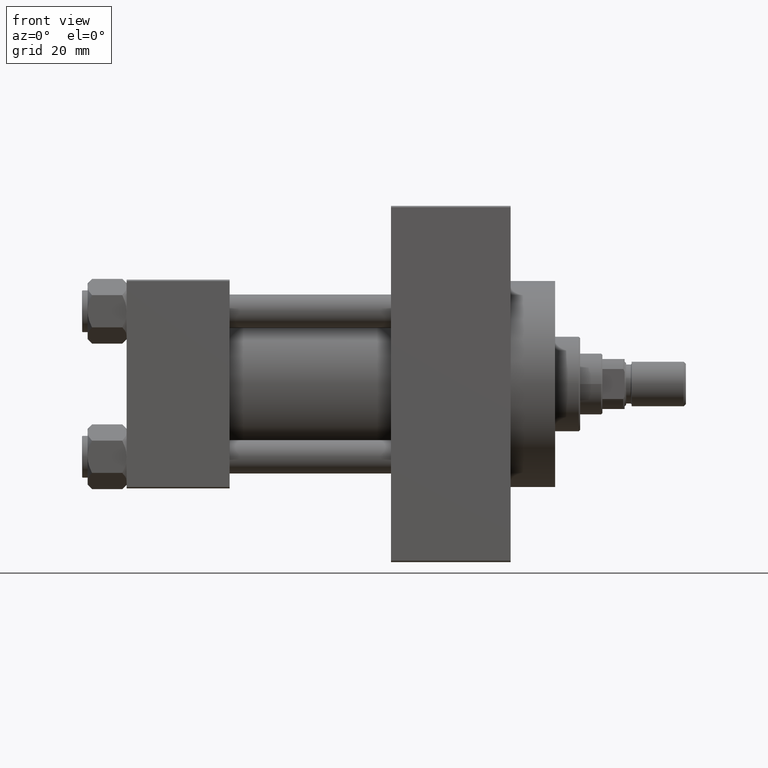
[diagram: clean part render]
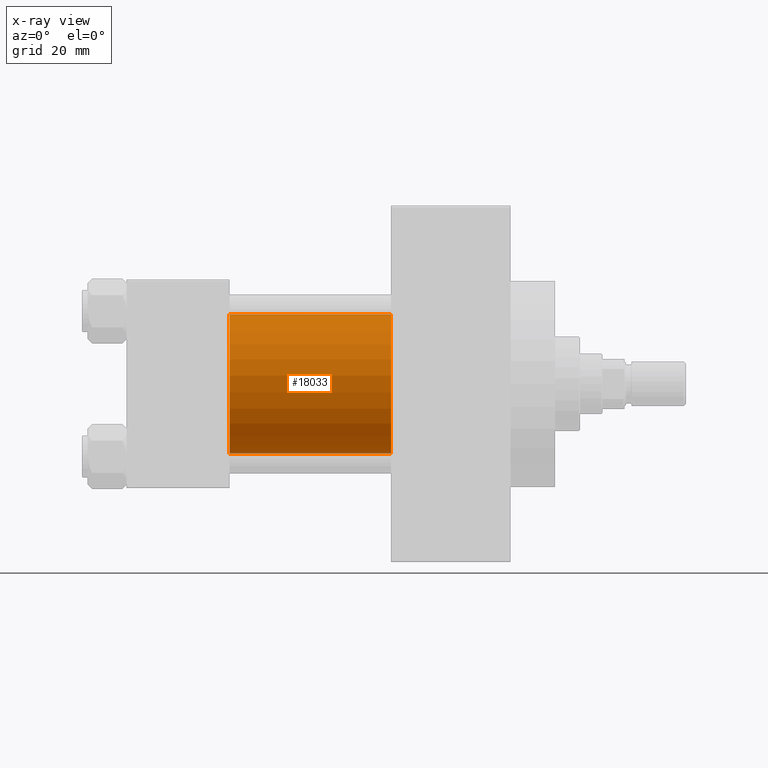
[diagram: x-ray — body ghosted, one internal face saturated and labeled with its STEP entity id]
A machine part, front view, then the same camera in x-ray: the body is ghosted and one INTERNAL B-rep face — a face not visible from any outside direction — is saturated and labeled: STEP entity #18033.
In plain terms, the highlighted cylindrical surface (partial cylindrical patch) has radius 25 mm, axis along (-1, -0, -0).
Its self-contained STEP definition (entity closure, byte-faithful):
#296 = CARTESIAN_POINT ( 'NONE',  ( 37.00000000000000000, 4.595317839031718093E-16, -25.00000000000000000 ) ) ;
#569 = ORIENTED_EDGE ( 'NONE', *, *, #3714, .T. ) ;
#1437 = DIRECTION ( 'NONE',  ( 0.000000000000000000, 0.000000000000000000, -1.000000000000000000 ) ) ;
#1867 = CIRCLE ( 'NONE', #9534, 25.00000000000000000 ) ;
#2602 = LINE ( 'NONE', #21159, #44477 ) ;
#3714 = EDGE_CURVE ( 'NONE', #44655, #37868, #1867, .T. ) ;
#5906 = LINE ( 'NONE', #20605, #40358 ) ;
#7557 = ORIENTED_EDGE ( 'NONE', *, *, #42590, .F. ) ;
#8296 = CARTESIAN_POINT ( 'NONE',  ( 95.00000000000000000, -2.602085213965210642E-15, 25.00000000000000000 ) ) ;
#8761 = EDGE_CURVE ( 'NONE', #37868, #44952, #2602, .T. ) ;
#9534 = AXIS2_PLACEMENT_3D ( 'NONE', #32017, #20229, #16851 ) ;
#10900 = CARTESIAN_POINT ( 'NONE',  ( 95.00000000000000000, 4.595317839031718093E-16, -25.00000000000000000 ) ) ;
#11790 = DIRECTION ( 'NONE',  ( 1.000000000000000000, 0.000000000000000000, 0.000000000000000000 ) ) ;
#12089 = DIRECTION ( 'NONE',  ( 0.000000000000000000, 0.000000000000000000, 1.000000000000000000 ) ) ;
#14266 = VERTEX_POINT ( 'NONE', #26019 ) ;
#15903 = CARTESIAN_POINT ( 'NONE',  ( 37.00000000000000000, -2.602085213965210642E-15, 0.000000000000000000 ) ) ;
#16420 = FACE_OUTER_BOUND ( 'NONE', #33277, .T. ) ;
#16851 = DIRECTION ( 'NONE',  ( 0.000000000000000000, 0.000000000000000000, -1.000000000000000000 ) ) ;
#18033 = ADVANCED_FACE ( 'NONE', ( #16420 ), #41490, .F. ) ;
#19073 = CIRCLE ( 'NONE', #46764, 25.00000000000000000 ) ;
#20229 = DIRECTION ( 'NONE',  ( 1.000000000000000000, 0.000000000000000000, 0.000000000000000000 ) ) ;
#20605 = CARTESIAN_POINT ( 'NONE',  ( 95.00000000000000000, -2.602085213965210642E-15, 25.00000000000000000 ) ) ;
#21159 = CARTESIAN_POINT ( 'NONE',  ( 95.00000000000000000, 4.595317839031718093E-16, -25.00000000000000000 ) ) ;
#24537 = DIRECTION ( 'NONE',  ( -1.000000000000000000, -0.000000000000000000, -0.000000000000000000 ) ) ;
#26019 = CARTESIAN_POINT ( 'NONE',  ( 37.00000000000000000, -2.602085213965210642E-15, 25.00000000000000000 ) ) ;
#30421 = CARTESIAN_POINT ( 'NONE',  ( 95.00000000000000000, -2.602085213965210642E-15, 0.000000000000000000 ) ) ;
#31767 = EDGE_CURVE ( 'NONE', #14266, #44952, #19073, .T. ) ;
#32017 = CARTESIAN_POINT ( 'NONE',  ( 95.00000000000000000, -2.602085213965210642E-15, 0.000000000000000000 ) ) ;
#33277 = EDGE_LOOP ( 'NONE', ( #569, #43278, #33870, #7557 ) ) ;
#33870 = ORIENTED_EDGE ( 'NONE', *, *, #31767, .F. ) ;
#35300 = DIRECTION ( 'NONE',  ( -1.000000000000000000, -0.000000000000000000, -0.000000000000000000 ) ) ;
#37868 = VERTEX_POINT ( 'NONE', #10900 ) ;
#40358 = VECTOR ( 'NONE', #35300, 1000.000000000000000 ) ;
#41490 = CYLINDRICAL_SURFACE ( 'NONE', #41800, 25.00000000000000000 ) ;
#41800 = AXIS2_PLACEMENT_3D ( 'NONE', #30421, #45112, #12089 ) ;
#42590 = EDGE_CURVE ( 'NONE', #44655, #14266, #5906, .T. ) ;
#43278 = ORIENTED_EDGE ( 'NONE', *, *, #8761, .T. ) ;
#44477 = VECTOR ( 'NONE', #24537, 1000.000000000000000 ) ;
#44655 = VERTEX_POINT ( 'NONE', #8296 ) ;
#44952 = VERTEX_POINT ( 'NONE', #296 ) ;
#45112 = DIRECTION ( 'NONE',  ( -1.000000000000000000, -0.000000000000000000, -0.000000000000000000 ) ) ;
#46764 = AXIS2_PLACEMENT_3D ( 'NONE', #15903, #11790, #1437 ) ;